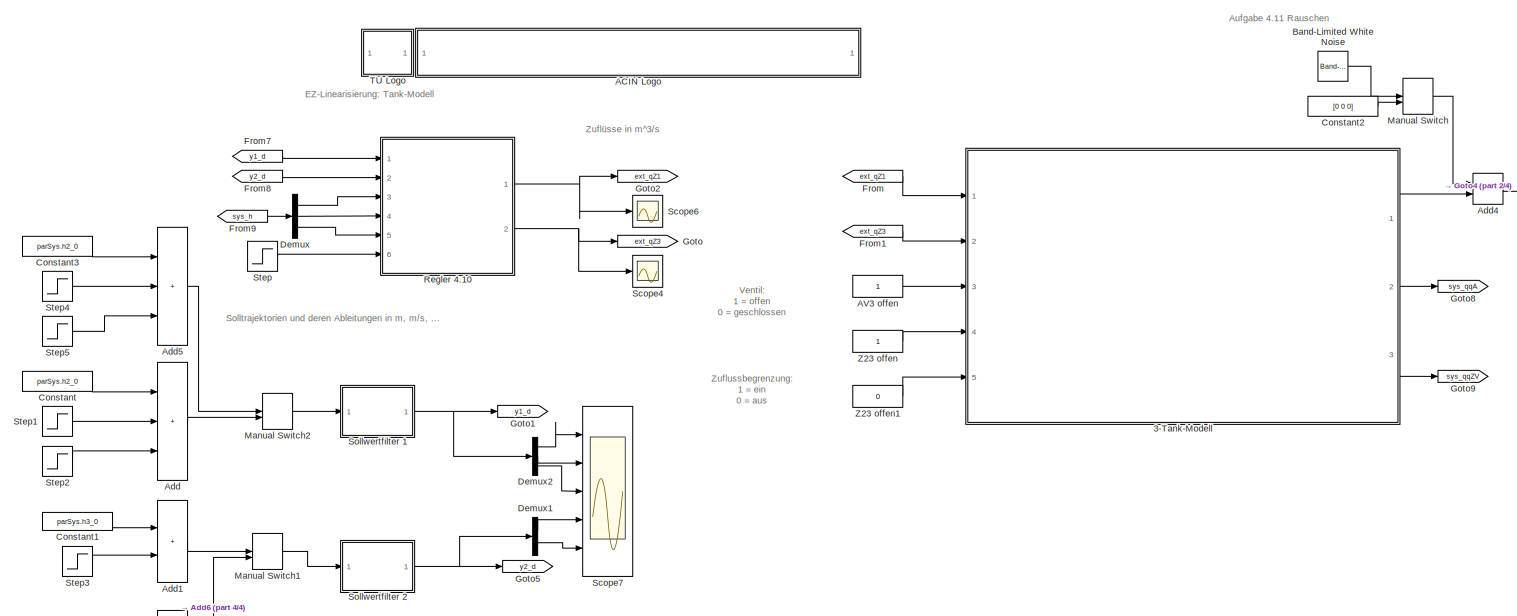
[diagram: root canvas - part 1/4, full width, top band]
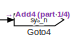
[diagram: root canvas - part 2/4, top right region]
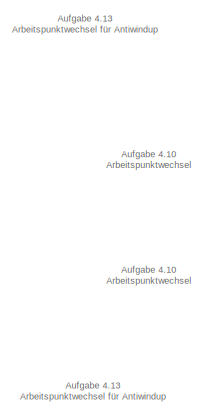
[diagram: root canvas - part 3/4, middle left region]
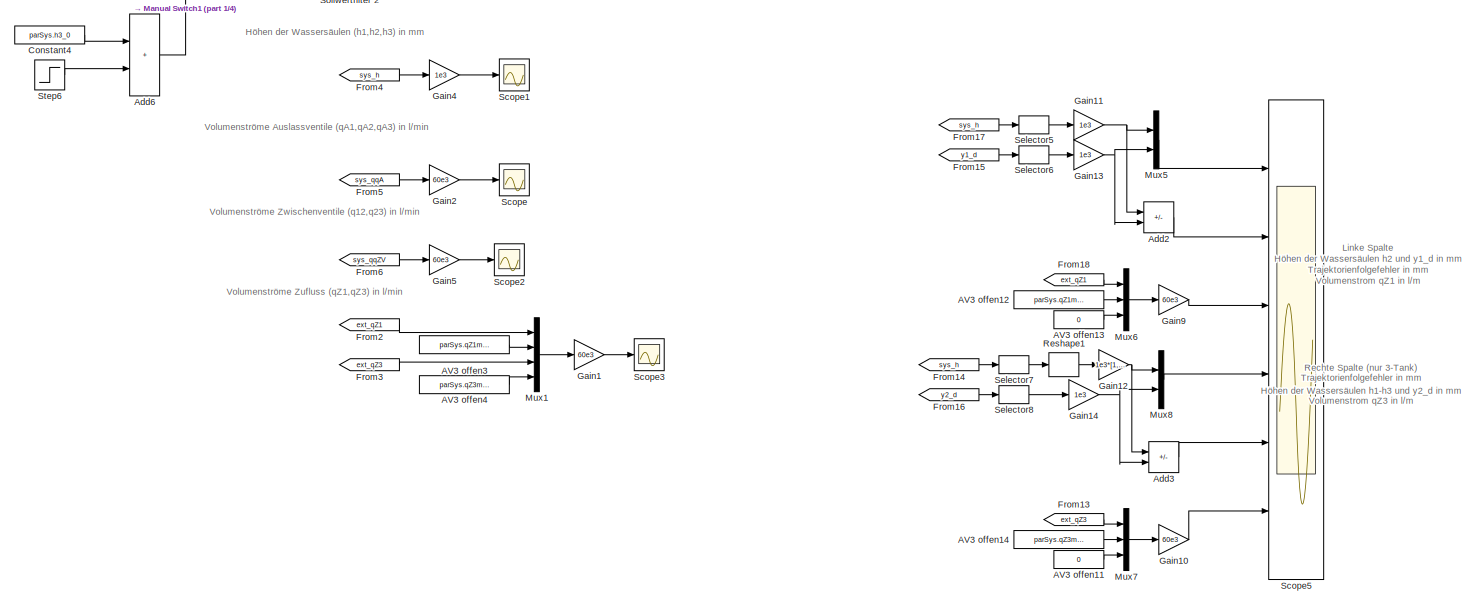
[diagram: root canvas - part 4/4, full width, bottom band]
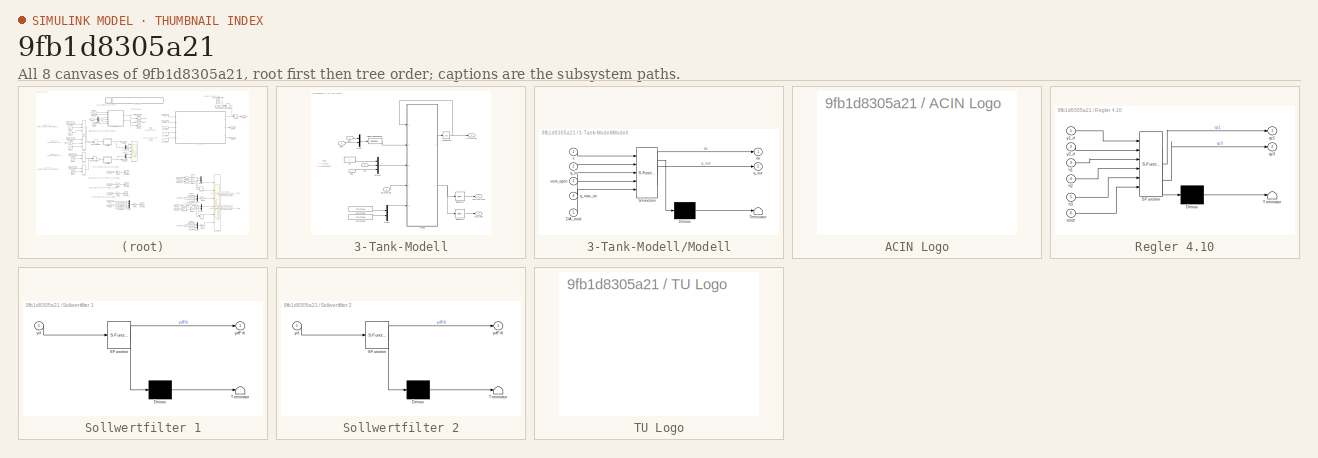
[diagram: thumbnail index - all 8 canvases of the model, root first then tree order]
MODEL slx_9fb1d8305a21
KIND model
CONFIG AbsTol = auto
CONFIG EnableMultiTasking = off
CONFIG FixedStep = auto
CONFIG MaxStep = auto
CONFIG MinStep = auto
CONFIG RelTol = 1e-3
CONFIG SampleTimeConstraint = Unconstrained
CONFIG SolverName = ode45
CONFIG StartTime = 0.0
CONFIG StopTime = 1500
BLOCK [SubSystem] 3-Tank-Modell
  Ports = [5, 3]
  RequestExecContextInheritance = off
  UserDataPersistent = on
BLOCK [Constant] 3-Tank-Modell/AV1
BLOCK [Inport] 3-Tank-Modell/AV3
  Port = 3
BLOCK [Constant] 3-Tank-Modell/AV3 offen1
  Value = parSys.DA1
BLOCK [Constant] 3-Tank-Modell/AV3 offen3
  Value = parSys.DA3
BLOCK [Integrator] 3-Tank-Modell/Integrator
  InitialCondition = [parSys.h1_0;parSys.h2_0;parSys.h3_0]
  Ports = [1, 1]
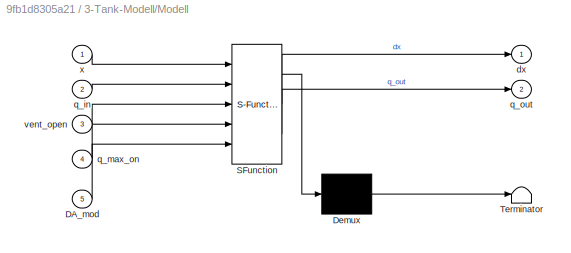
BLOCK [SubSystem] 3-Tank-Modell/Modell
  ErrorFcn = Stateflow.Translate.translate
  PermitHierarchicalResolution = ExplicitOnly
  Ports = [5, 2]
  RequestExecContextInheritance = off
  SFBlockType = MATLAB Function
  TreatAsAtomicUnit = on
BLOCK [Demux] 3-Tank-Modell/Modell/ Demux 
  Outputs = 1
  Ports = [1, 1]
BLOCK [S-Function] 3-Tank-Modell/Modell/ SFunction 
  EnableBusSupport = on
  FunctionName = sf_sfun
  Parameters = parSys
  PortCounts = [5 3]
  Ports = [5, 3]
  SFcnIsStateOwnerBlock = off
  SFunctionDeploymentMode = off
  Tag = Stateflow S-Function 5
BLOCK [Terminator] 3-Tank-Modell/Modell/ Terminator 
BLOCK [Inport] 3-Tank-Modell/Modell/DA_mod
  Port = 5
BLOCK [Outport] 3-Tank-Modell/Modell/dx
  VectorParamsAs1DForOutWhenUnconnected = off
BLOCK [Inport] 3-Tank-Modell/Modell/q_in
  Port = 2
BLOCK [Inport] 3-Tank-Modell/Modell/q_max_on
  Port = 4
BLOCK [Outport] 3-Tank-Modell/Modell/q_out
  Port = 2
  VectorParamsAs1DForOutWhenUnconnected = off
BLOCK [Inport] 3-Tank-Modell/Modell/vent_open
  Port = 3
BLOCK [Inport] 3-Tank-Modell/Modell/x
BLOCK [Mux] 3-Tank-Modell/Mux1
  DisplayOption = bar
  Inputs = 2
  Ports = [2, 1]
BLOCK [Mux] 3-Tank-Modell/Mux10
  DisplayOption = bar
  Inputs = 3
  Ports = [3, 1]
BLOCK [Mux] 3-Tank-Modell/Mux3
  DisplayOption = bar
  Inputs = 2
  Ports = [2, 1]
BLOCK [Selector] 3-Tank-Modell/Selector2
  IndexOptions = Index vector (dialog)
  Indices = [1 2 3]
  InputPortWidth = 5
  OutputSizes = 1
  Ports = [1, 1]
BLOCK [Selector] 3-Tank-Modell/Selector3
  IndexOptions = Index vector (dialog)
  Indices = [4 5]
  InputPortWidth = 5
  OutputSizes = 1
  Ports = [1, 1]
BLOCK [SignalSpecification] 3-Tank-Modell/Signal Specification
  Dimensions = 2
BLOCK [Inport] 3-Tank-Modell/Z23
  Port = 4
BLOCK [Outport] 3-Tank-Modell/[h1 h2 h3]
  VectorParamsAs1DForOutWhenUnconnected = off
BLOCK [Outport] 3-Tank-Modell/[q12 q23]
  Port = 3
  VectorParamsAs1DForOutWhenUnconnected = off
BLOCK [Outport] 3-Tank-Modell/[qA1 qA2 qA3]
  Port = 2
  VectorParamsAs1DForOutWhenUnconnected = off
BLOCK [Inport] 3-Tank-Modell/qZ1
BLOCK [Inport] 3-Tank-Modell/qZ3
  Port = 2
BLOCK [Inport] 3-Tank-Modell/qZ_max_on
  Port = 5
BLOCK [SubSystem] ACIN Logo
  Ports = []
  RequestExecContextInheritance = off
  UserDataPersistent = on
BLOCK [Constant] AV3 offen
BLOCK [Constant] AV3 offen11
  Value = 0
BLOCK [Constant] AV3 offen12
  SampleTime = parSys.Ta
  Value = parSys.qZ1max
BLOCK [Constant] AV3 offen13
  Value = 0
BLOCK [Constant] AV3 offen14
  SampleTime = parSys.Ta
  Value = parSys.qZ3max
BLOCK [Constant] AV3 offen3
  SampleTime = parSys.Ta
  Value = parSys.qZ1max
BLOCK [Constant] AV3 offen4
  SampleTime = parSys.Ta
  Value = parSys.qZ3max
BLOCK [Sum] Add
  IconShape = rectangular
  Inputs = +++
  Ports = [3, 1]
BLOCK [Sum] Add1
  IconShape = rectangular
  Ports = [2, 1]
BLOCK [Sum] Add2
  IconShape = rectangular
  Inputs = +-
  Ports = [2, 1]
BLOCK [Sum] Add3
  IconShape = rectangular
  Inputs = +-
  Ports = [2, 1]
BLOCK [Sum] Add4
  IconShape = rectangular
  Ports = [2, 1]
BLOCK [Sum] Add5
  IconShape = rectangular
  Inputs = +++
  Ports = [3, 1]
BLOCK [Sum] Add6
  IconShape = rectangular
  Ports = [2, 1]
BLOCK [Reference] Band-Limited White Noise  REF=simulink/Sources/Band-Limited
White Noise
  Ports = [0, 1]
  SourceBlock = simulink/Sources/Band-Limited\nWhite Noise
  SourceProductBaseCode = SL
  SourceType = Band-Limited White Noise.
BLOCK [Constant] Constant
  Value = parSys.h2_0
BLOCK [Constant] Constant1
  Value = parSys.h3_0
BLOCK [Constant] Constant2
  Value = [0 0 0]
BLOCK [Constant] Constant3
  Value = parSys.h2_0
BLOCK [Constant] Constant4
  Value = parSys.h3_0
BLOCK [Demux] Demux
  Outputs = 3
  Ports = [1, 3]
BLOCK [Demux] Demux1
  Outputs = 2
  Ports = [1, 2]
BLOCK [Demux] Demux2
  Outputs = 3
  Ports = [1, 3]
BLOCK [From] From
  GotoTag = ext_qZ1
BLOCK [From] From1
  GotoTag = ext_qZ3
BLOCK [From] From13
  GotoTag = ext_qZ3
BLOCK [From] From14
  GotoTag = sys_h
  TagVisibility = global
BLOCK [From] From15
  GotoTag = y1_d
  TagVisibility = global
BLOCK [From] From16
  GotoTag = y2_d
  TagVisibility = global
BLOCK [From] From17
  GotoTag = sys_h
  TagVisibility = global
BLOCK [From] From18
  GotoTag = ext_qZ1
BLOCK [From] From2
  GotoTag = ext_qZ1
BLOCK [From] From3
  GotoTag = ext_qZ3
BLOCK [From] From4
  GotoTag = sys_h
  TagVisibility = global
BLOCK [From] From5
  GotoTag = sys_qqA
  TagVisibility = global
BLOCK [From] From6
  GotoTag = sys_qqZV
  TagVisibility = global
BLOCK [From] From7
  GotoTag = y1_d
  TagVisibility = global
BLOCK [From] From8
  GotoTag = y2_d
  TagVisibility = global
BLOCK [From] From9
  GotoTag = sys_h
  TagVisibility = global
BLOCK [Gain] Gain1
  Gain = 60e3
BLOCK [Gain] Gain10
  Gain = 60e3
BLOCK [Gain] Gain11
  Gain = 1e3
BLOCK [Gain] Gain12
  Gain = 1e3*[1,-1]
  Multiplication = Matrix(K*u)
BLOCK [Gain] Gain13
  Gain = 1e3
BLOCK [Gain] Gain14
  Gain = 1e3
BLOCK [Gain] Gain2
  Gain = 60e3
BLOCK [Gain] Gain4
  Gain = 1e3
BLOCK [Gain] Gain5
  Gain = 60e3
BLOCK [Gain] Gain9
  Gain = 60e3
BLOCK [Goto] Goto
  GotoTag = ext_qZ3
BLOCK [Goto] Goto1
  GotoTag = y1_d
  TagVisibility = global
BLOCK [Goto] Goto2
  GotoTag = ext_qZ1
BLOCK [Goto] Goto4
  GotoTag = sys_h
  TagVisibility = global
BLOCK [Goto] Goto5
  GotoTag = y2_d
  TagVisibility = global
BLOCK [Goto] Goto8
  GotoTag = sys_qqA
  TagVisibility = global
BLOCK [Goto] Goto9
  GotoTag = sys_qqZV
  TagVisibility = global
BLOCK [ManualSwitch] Manual Switch
  CurrentSetting = 0
BLOCK [ManualSwitch] Manual Switch1
  CurrentSetting = 0
BLOCK [ManualSwitch] Manual Switch2
BLOCK [Mux] Mux1
  DisplayOption = bar
  Ports = [4, 1]
BLOCK [Mux] Mux5
  DisplayOption = bar
  Inputs = 2
  Ports = [2, 1]
BLOCK [Mux] Mux6
  DisplayOption = bar
  Inputs = 3
  Ports = [3, 1]
BLOCK [Mux] Mux7
  DisplayOption = bar
  Inputs = 3
  Ports = [3, 1]
BLOCK [Mux] Mux8
  DisplayOption = bar
  Inputs = 2
  Ports = [2, 1]
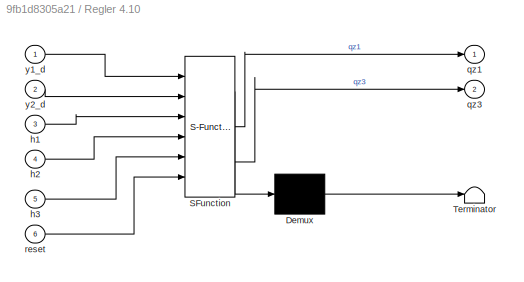
BLOCK [SubSystem] Regler 4.10
  ErrorFcn = Stateflow.Translate.translate
  PermitHierarchicalResolution = ExplicitOnly
  Ports = [6, 2]
  RequestExecContextInheritance = off
  SFBlockType = MATLAB Function
  TreatAsAtomicUnit = on
BLOCK [Demux] Regler 4.10/ Demux 
  Outputs = 1
  Ports = [1, 1]
BLOCK [S-Function] Regler 4.10/ SFunction 
  EnableBusSupport = on
  FunctionName = sf_sfun
  Parameters = parInit,parSys
  PortCounts = [6 3]
  Ports = [6, 3]
  SFcnIsStateOwnerBlock = off
  SFunctionDeploymentMode = off
  Tag = Stateflow S-Function 2
BLOCK [Terminator] Regler 4.10/ Terminator 
BLOCK [Inport] Regler 4.10/h1
  Port = 3
BLOCK [Inport] Regler 4.10/h2
  Port = 4
BLOCK [Inport] Regler 4.10/h3
  Port = 5
BLOCK [Outport] Regler 4.10/qz1
BLOCK [Outport] Regler 4.10/qz3
  Port = 2
BLOCK [Inport] Regler 4.10/reset
  Port = 6
BLOCK [Inport] Regler 4.10/y1_d
BLOCK [Inport] Regler 4.10/y2_d
  Port = 2
BLOCK [Reshape] Reshape1
  OutputDimensionality = Column vector (2-D)
  Ports = [1, 1]
BLOCK [Scope] Scope
  Floating = off
  NumInputPorts = 1
  Ports = [1]
  ScopeSpecificationString = Simulink.scopes.TimeScopeBlockCfg('CurrentConfiguration', extmgr.ConfigurationSet(extmgr.Configuration('Core','General UI',true),extmgr.Configuration('Core','Source UI',true),extmgr.Configuration('Sources','WiredSimulink',true,'DataLoggingSaveFormat','Array','DataLoggingDecimation','1','DataLoggingDecimateData',true),extmgr.Configuration('Visuals','Time Domain',true,'DisplayPropertyDefaults',struc...<+824ch>
BLOCK [Scope] Scope1
  Floating = off
  NumInputPorts = 1
  Ports = [1]
  ScopeSpecificationString = Simulink.scopes.TimeScopeBlockCfg('CurrentConfiguration', extmgr.ConfigurationSet(extmgr.Configuration('Core','General UI',true),extmgr.Configuration('Core','Source UI',true),extmgr.Configuration('Sources','WiredSimulink',true,'DataLoggingVariableName','ScopeData1','DataLoggingSaveFormat','Array','DataLoggingDecimation','1','DataLoggingDecimateData',true),extmgr.Configuration('Visuals','Time Domai...<+1671ch>
BLOCK [Scope] Scope2
  Floating = off
  NumInputPorts = 1
  Ports = [1]
  ScopeSpecificationString = Simulink.scopes.TimeScopeBlockCfg('CurrentConfiguration', extmgr.ConfigurationSet(extmgr.Configuration('Core','General UI',true),extmgr.Configuration('Core','Source UI',true),extmgr.Configuration('Sources','WiredSimulink',true,'DataLoggingVariableName','ScopeData2','DataLoggingSaveFormat','Array','DataLoggingDecimation','1','DataLoggingDecimateData',true),extmgr.Configuration('Visuals','Time Domai...<+863ch>
BLOCK [Scope] Scope3
  Floating = off
  NumInputPorts = 1
  Ports = [1]
  ScopeSpecificationString = Simulink.scopes.TimeScopeBlockCfg('CurrentConfiguration', extmgr.ConfigurationSet(extmgr.Configuration('Core','General UI',true),extmgr.Configuration('Core','Source UI',true),extmgr.Configuration('Sources','WiredSimulink',true,'DataLoggingVariableName','ScopeData3','DataLoggingSaveFormat','Array','DataLoggingDecimation','1','DataLoggingDecimateData',true),extmgr.Configuration('Visuals','Time Domai...<+863ch>
BLOCK [Scope] Scope4
  Floating = off
  NumInputPorts = 1
  Ports = [1]
  ScopeSpecificationString = Simulink.scopes.TimeScopeBlockCfg('CurrentConfiguration', extmgr.ConfigurationSet(extmgr.Configuration('Core','General UI',true),extmgr.Configuration('Core','Source UI',true),extmgr.Configuration('Sources','WiredSimulink',true,'DataLoggingVariableName','ScopeData1'),extmgr.Configuration('Visuals','Time Domain',true,'SerializedDisplays',{struct('MinYLimReal','0.000007','MaxYLimReal','0.000052','YLa...<+1411ch>
BLOCK [Scope] Scope5
  Floating = off
  NumInputPorts = 6
  Ports = [6]
  ScopeSpecificationString = Simulink.scopes.TimeScopeBlockCfg('CurrentConfiguration', extmgr.ConfigurationSet(extmgr.Configuration('Core','General UI',true),extmgr.Configuration('Core','Source UI',true),extmgr.Configuration('Sources','WiredSimulink',true,'DataLoggingVariableName','ScopeData5','DataLoggingSaveFormat','Array','DataLoggingDecimation','1','DataLoggingDecimateData',true),extmgr.Configuration('Visuals','Time Domai...<+5114ch>
BLOCK [Scope] Scope6
  Floating = off
  NumInputPorts = 1
  Ports = [1]
  ScopeSpecificationString = Simulink.scopes.TimeScopeBlockCfg('CurrentConfiguration', extmgr.ConfigurationSet(extmgr.Configuration('Core','General UI',true),extmgr.Configuration('Core','Source UI',true),extmgr.Configuration('Sources','WiredSimulink',true,'DataLoggingVariableName','ScopeData2'),extmgr.Configuration('Visuals','Time Domain',true,'SerializedDisplays',{struct('MinYLimReal','0.000025','MaxYLimReal','0.000081','YLa...<+1380ch>
BLOCK [Scope] Scope7
  Floating = off
  NumInputPorts = 5
  Ports = [5]
  ScopeSpecificationString = Simulink.scopes.TimeScopeBlockCfg('CurrentConfiguration', extmgr.ConfigurationSet(extmgr.Configuration('Core','General UI',true),extmgr.Configuration('Core','Source UI',true),extmgr.Configuration('Sources','WiredSimulink',true,'DataLoggingVariableName','ScopeData1'),extmgr.Configuration('Visuals','Time Domain',true,'SerializedDisplays',{struct('MinYLimReal','0.12147','MaxYLimReal','0.47147','YLabe...<+4854ch>
BLOCK [Selector] Selector5
  IndexOptions = Index vector (dialog)
  Indices = [2]
  InputPortWidth = 3
  OutputSizes = 1
  Ports = [1, 1]
BLOCK [Selector] Selector6
  IndexOptions = Index vector (dialog)
  Indices = [1]
  InputPortWidth = 3
  OutputSizes = 1
  Ports = [1, 1]
BLOCK [Selector] Selector7
  IndexOptions = Index vector (dialog)
  Indices = [1 3]
  InputPortWidth = 3
  OutputSizes = 1
  Ports = [1, 1]
BLOCK [Selector] Selector8
  IndexOptions = Index vector (dialog)
  Indices = [1]
  InputPortWidth = 2
  OutputSizes = 1
  Ports = [1, 1]
BLOCK [SubSystem] Sollwertfilter 1
  ErrorFcn = Stateflow.Translate.translate
  PermitHierarchicalResolution = ExplicitOnly
  Ports = [1, 1]
  RequestExecContextInheritance = off
  SFBlockType = MATLAB Function
  TreatAsAtomicUnit = on
BLOCK [Demux] Sollwertfilter 1/ Demux 
  Outputs = 1
  Ports = [1, 1]
BLOCK [S-Function] Sollwertfilter 1/ SFunction 
  EnableBusSupport = on
  FunctionName = sf_sfun
  Parameters = parSys
  PortCounts = [1 2]
  Ports = [1, 2]
  SFcnIsStateOwnerBlock = off
  SFunctionDeploymentMode = off
  Tag = Stateflow S-Function 1
BLOCK [Terminator] Sollwertfilter 1/ Terminator 
BLOCK [Inport] Sollwertfilter 1/yd
BLOCK [Outport] Sollwertfilter 1/ydFilt
BLOCK [SubSystem] Sollwertfilter 2
  ErrorFcn = Stateflow.Translate.translate
  PermitHierarchicalResolution = ExplicitOnly
  Ports = [1, 1]
  RequestExecContextInheritance = off
  SFBlockType = MATLAB Function
  TreatAsAtomicUnit = on
BLOCK [Demux] Sollwertfilter 2/ Demux 
  Outputs = 1
  Ports = [1, 1]
BLOCK [S-Function] Sollwertfilter 2/ SFunction 
  EnableBusSupport = on
  FunctionName = sf_sfun
  Parameters = parSys
  PortCounts = [1 2]
  Ports = [1, 2]
  SFcnIsStateOwnerBlock = off
  SFunctionDeploymentMode = off
  Tag = Stateflow S-Function 3
BLOCK [Terminator] Sollwertfilter 2/ Terminator 
BLOCK [Inport] Sollwertfilter 2/yd
BLOCK [Outport] Sollwertfilter 2/ydFilt
BLOCK [Step] Step
  After = 0
  Before = 1
  SampleTime = 0
BLOCK [Step] Step1
  After = 0.1
  SampleTime = 0
  Time = 0
BLOCK [Step] Step2
  After = -0.1
  SampleTime = 0
  Time = 600
BLOCK [Step] Step3
  After = -0.05
  SampleTime = 0
  Time = 300
BLOCK [Step] Step4
  After = 0.28
  SampleTime = 0
  Time = 0
BLOCK [Step] Step5
  After = -0.28
  SampleTime = 0
  Time = 600
BLOCK [Step] Step6
  After = -0.15
  SampleTime = 0
  Time = 300
BLOCK [SubSystem] TU Logo
  Ports = []
  RequestExecContextInheritance = off
  UserDataPersistent = on
BLOCK [Constant] Z23 offen
BLOCK [Constant] Z23 offen1
  Value = 0
ANNOTATION (root): Aufgabe 4.10 Arbeitspunktwechsel
ANNOTATION (root): Aufgabe 4.11 Rauschen
ANNOTATION (root): Aufgabe 4.13 Arbeitspunktwechsel für Antiwindup
ANNOTATION (root): EZ-Linearisierung: Tank-Modell
ANNOTATION (root): Höhen der Wassersäulen (h1,h2,h3) in mm
ANNOTATION (root): Linke Spalte Höhen der Wassersäulen h2 und y1_d in mm Trajektorienfolgefehler in mm Volumenstrom qZ1 in l/m
ANNOTATION (root): Rechte Spalte (nur 3-Tank) Höhen der Wassersäulen h1-h3 und y2_d in mm Trajektorienfolgefehler in mm Volumenstrom qZ3 in l/m
ANNOTATION (root): Solltrajektorien und deren Ableitungen in m, m/s, ...
ANNOTATION (root): Ventil: 1 = offen 0 = geschlossen
ANNOTATION (root): Volumenströme Auslassventile (qA1,qA2,qA3) in l/min
ANNOTATION (root): Volumenströme Zufluss (qZ1,qZ3) in l/min
ANNOTATION (root): Volumenströme Zwischenventile (q12,q23) in l/min
ANNOTATION (root): Zuflussbegrenzung: 1 = ein 0 = aus
ANNOTATION (root): Zuflüsse in m^3/s
ANNOTATION 3-Tank-Modell: Ventil: 1 = offen 0 = geschlossen
LINE 3-Tank-Modell/AV1:1 -> 3-Tank-Modell/Mux10:1
LINE 3-Tank-Modell/AV3 offen1:1 -> 3-Tank-Modell/Mux1:1
LINE 3-Tank-Modell/AV3 offen3:1 -> 3-Tank-Modell/Mux1:2
LINE 3-Tank-Modell/AV3:1 -> 3-Tank-Modell/Mux10:2
NET 3-Tank-Modell/Integrator:1 -> 3-Tank-Modell/Modell:1, 3-Tank-Modell/[h1 h2 h3]:1
LINE 3-Tank-Modell/Modell:1 -> 3-Tank-Modell/Integrator:1
NET 3-Tank-Modell/Modell:2 -> 3-Tank-Modell/Selector2:1, 3-Tank-Modell/Selector3:1
LINE 3-Tank-Modell/Mux10:1 -> 3-Tank-Modell/Modell:3
LINE 3-Tank-Modell/Mux1:1 -> 3-Tank-Modell/Modell:5
LINE 3-Tank-Modell/Mux3:1 -> 3-Tank-Modell/Signal Specification:1
LINE 3-Tank-Modell/Selector2:1 -> 3-Tank-Modell/[qA1 qA2 qA3]:1
LINE 3-Tank-Modell/Selector3:1 -> 3-Tank-Modell/[q12 q23]:1
LINE 3-Tank-Modell/Signal Specification:1 -> 3-Tank-Modell/Modell:2
LINE 3-Tank-Modell/Z23:1 -> 3-Tank-Modell/Mux10:3
LINE 3-Tank-Modell/qZ1:1 -> 3-Tank-Modell/Mux3:1
LINE 3-Tank-Modell/qZ3:1 -> 3-Tank-Modell/Mux3:2
LINE 3-Tank-Modell/qZ_max_on:1 -> 3-Tank-Modell/Modell:4
LINE 3-Tank-Modell:1 -> Add4:2
LINE 3-Tank-Modell:2 -> Goto8:1
LINE 3-Tank-Modell:3 -> Goto9:1
LINE AV3 offen11:1 -> Mux7:3
LINE AV3 offen12:1 -> Mux6:2
LINE AV3 offen13:1 -> Mux6:3
LINE AV3 offen14:1 -> Mux7:2
LINE AV3 offen3:1 -> Mux1:2
LINE AV3 offen4:1 -> Mux1:4
LINE AV3 offen:1 -> 3-Tank-Modell:3
LINE Add1:1 -> Manual Switch1:1
LINE Add2:1 -> Scope5:2
LINE Add3:1 -> Scope5:5
LINE Add4:1 -> Goto4:1
LINE Add5:1 -> Manual Switch2:1
LINE Add6:1 -> Manual Switch1:2
LINE Add:1 -> Manual Switch2:2
LINE Band-Limited White Noise:1 -> Manual Switch:1
LINE Constant1:1 -> Add1:1
LINE Constant2:1 -> Manual Switch:2
LINE Constant3:1 -> Add5:1
LINE Constant4:1 -> Add6:1
LINE Constant:1 -> Add:1
LINE Demux1:1 -> Scope7:4
LINE Demux1:2 -> Scope7:5
LINE Demux2:1 -> Scope7:1
LINE Demux2:2 -> Scope7:2
LINE Demux2:3 -> Scope7:3
LINE Demux:1 -> Regler 4.10:3
LINE Demux:2 -> Regler 4.10:4
LINE Demux:3 -> Regler 4.10:5
LINE From13:1 -> Mux7:1
LINE From14:1 -> Selector7:1
LINE From15:1 -> Selector6:1
LINE From16:1 -> Selector8:1
LINE From17:1 -> Selector5:1
LINE From18:1 -> Mux6:1
LINE From1:1 -> 3-Tank-Modell:2
LINE From2:1 -> Mux1:1
LINE From3:1 -> Mux1:3
LINE From4:1 -> Gain4:1
LINE From5:1 -> Gain2:1
LINE From6:1 -> Gain5:1
LINE From7:1 -> Regler 4.10:1
LINE From8:1 -> Regler 4.10:2
LINE From9:1 -> Demux:1
LINE From:1 -> 3-Tank-Modell:1
LINE Gain10:1 -> Scope5:6
NET Gain11:1 -> Add2:1, Mux5:1
NET Gain12:1 -> Add3:1, Mux8:1
NET Gain13:1 -> Add2:2, Mux5:2
NET Gain14:1 -> Add3:2, Mux8:2
LINE Gain1:1 -> Scope3:1
LINE Gain2:1 -> Scope:1
LINE Gain4:1 -> Scope1:1
LINE Gain5:1 -> Scope2:1
LINE Gain9:1 -> Scope5:3
LINE Manual Switch1:1 -> Sollwertfilter 2:1
LINE Manual Switch2:1 -> Sollwertfilter 1:1
LINE Manual Switch:1 -> Add4:1
LINE Mux1:1 -> Gain1:1
LINE Mux5:1 -> Scope5:1
LINE Mux6:1 -> Gain9:1
LINE Mux7:1 -> Gain10:1
LINE Mux8:1 -> Scope5:4
NET Regler 4.10:1 -> Goto2:1, Scope6:1
NET Regler 4.10:2 -> Goto:1, Scope4:1
LINE Reshape1:1 -> Gain12:1
LINE Selector5:1 -> Gain11:1
LINE Selector6:1 -> Gain13:1
LINE Selector7:1 -> Reshape1:1
LINE Selector8:1 -> Gain14:1
NET Sollwertfilter 1:1 -> Demux2:1, Goto1:1
NET Sollwertfilter 2:1 -> Demux1:1, Goto5:1
LINE Step1:1 -> Add:2
LINE Step2:1 -> Add:3
LINE Step3:1 -> Add1:2
LINE Step4:1 -> Add5:2
LINE Step5:1 -> Add5:3
LINE Step6:1 -> Add6:2
LINE Step:1 -> Regler 4.10:6
LINE Z23 offen1:1 -> 3-Tank-Modell:5
LINE Z23 offen:1 -> 3-Tank-Modell:4
note: NET lines group one-source signal fan-out (src -> all destinations, sorted); 1:1 wires keep LINE
CHART Sollwertfilter 1 states=1 transitions=1
  STATE_LABEL 'eML_blk_kernel()'
  STATE_LABEL "SCRIPT:\nfunction ydFilt = fcn(yd,parSys)\npersistent x\nif isempty(x)\n    x = parSys.Swy1FilterInit'; \nend\n\nydFilt = parSys.Cy1Filter*x;\nx  = parSys.Ay1Filter*x + parSys.By1Filter*yd;\nend\n"
CHART Regler 4.10 states=1 transitions=1
  STATE_LABEL 'eML_blk_kernel()'
  STATE_LABEL 'SCRIPT:\nfunction [qz1,qz3] = fcn(y1_d,y2_d,h1,h2,h3,reset, parSys, parInit)\n\npersistent errory1;\npersistent errory2;\n\nif isempty(errory1)\n    errory1 = 0;\n    errory2 = 0;\nend\n\nif reset == 1\n    errory1 = 0;\n    errory2 = 0;\nend\n\n% Parameter importieren \nAtank       =   parSys.Atank;       % Grundfläche Tank\nrho         =   parSys.rho;         % Dichte Wasser\neta         =   parSys.eta;         % ...<+3608ch>'
CHART Sollwertfilter 2 states=1 transitions=1
  STATE_LABEL 'eML_blk_kernel()'
  STATE_LABEL "SCRIPT:\nfunction ydFilt = fcn(yd,parSys)\npersistent x\nif isempty(x)\n    x = parSys.Swy2FilterInit'; \nend\n\nydFilt = parSys.Cy2Filter*x;\nx  = parSys.Ay2Filter*x + parSys.By2Filter*yd;\nend\n"
CHART 3-Tank-Modell/Modell states=1 transitions=1
  STATE_LABEL 'eML_blk_kernel()'
  STATE_LABEL 'SCRIPT:\nfunction [dx,q_out] = fcn(x,q_in,vent_open,q_max_on,DA_mod,parSys)\n%#codegen\n\n[dx,q_out] = Wassertank_mfun(x,q_in,vent_open,q_max_on,DA_mod,parSys);\n\n\n% Function end\nend'
CHART  states=0 transitions=0
CHART  states=0 transitions=0
CHART  states=0 transitions=0
CHART  states=0 transitions=0
